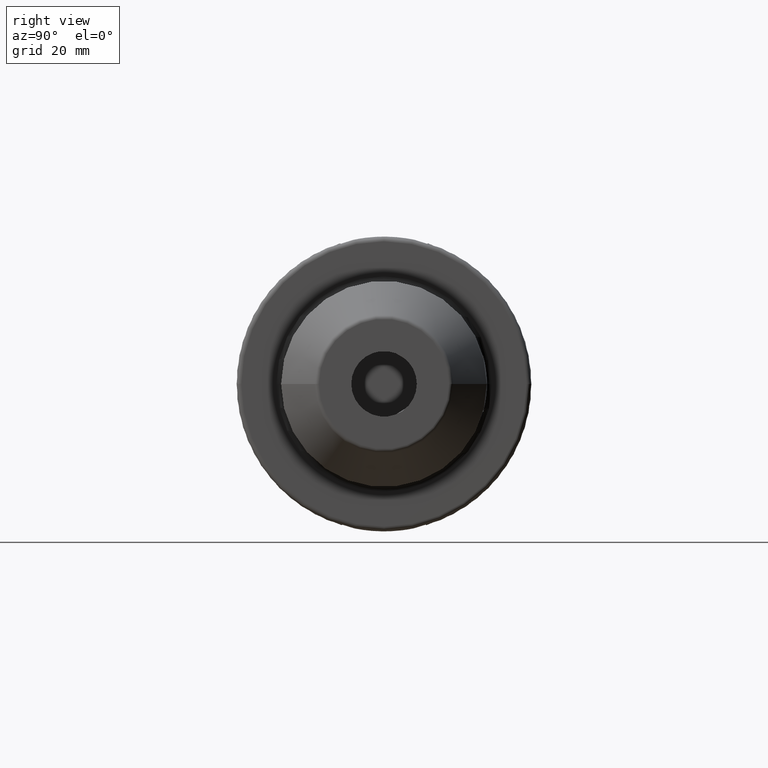
[diagram: clean part render]
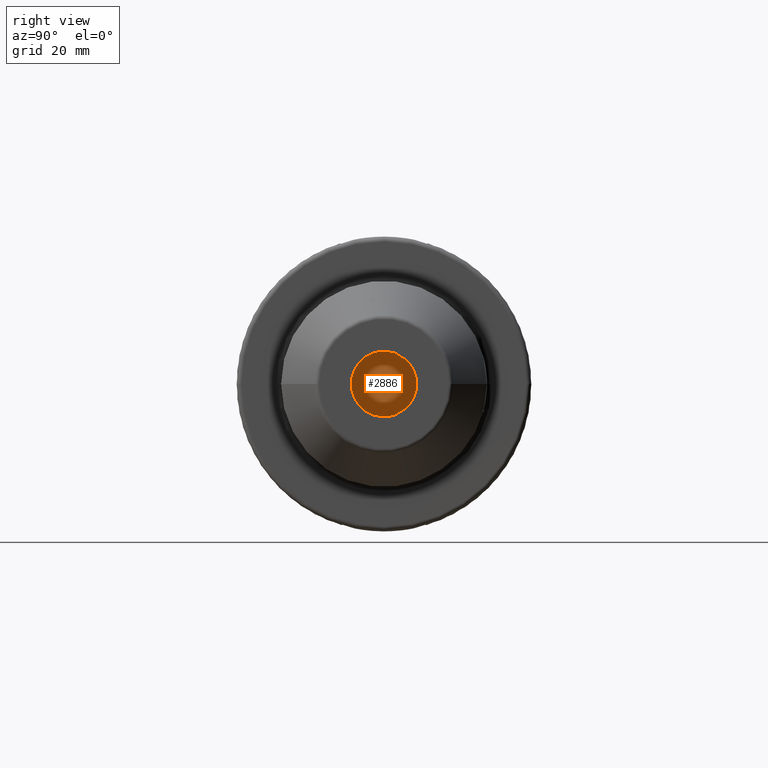
[diagram: same view with one face highlighted and labeled with its STEP entity id]
A machine part, right view. The second image highlights one B-rep face of the part: STEP entity #2886.
In plain terms, the highlighted planar face has unit normal (1, 0, 0).
Its self-contained STEP definition (entity closure, byte-faithful):
#1064=CARTESIAN_POINT('',(7.9E0,0.E0,0.E0));
#1065=DIRECTION('',(-1.E0,0.E0,0.E0));
#1066=DIRECTION('',(0.E0,1.E0,0.E0));
#1067=AXIS2_PLACEMENT_3D('',#1064,#1065,#1066);
#1069=CARTESIAN_POINT('',(7.9E0,0.E0,0.E0));
#1070=DIRECTION('',(1.E0,0.E0,0.E0));
#1071=DIRECTION('',(0.E0,1.E0,0.E0));
#1072=AXIS2_PLACEMENT_3D('',#1069,#1070,#1071);
#1517=CARTESIAN_POINT('',(7.9E0,7.E0,0.E0));
#1518=CARTESIAN_POINT('',(7.9E0,-7.E0,0.E0));
#1519=VERTEX_POINT('',#1517);
#1520=VERTEX_POINT('',#1518);
#2877=CARTESIAN_POINT('',(7.9E0,0.E0,0.E0));
#2878=DIRECTION('',(1.E0,0.E0,0.E0));
#2879=DIRECTION('',(0.E0,-1.E0,0.E0));
#2880=AXIS2_PLACEMENT_3D('',#2877,#2878,#2879);
#2881=PLANE('',#2880);
#2882=ORIENTED_EDGE('',*,*,#2801,.T.);
#2883=ORIENTED_EDGE('',*,*,#2780,.F.);
#2884=EDGE_LOOP('',(#2882,#2883));
#2885=FACE_OUTER_BOUND('',#2884,.F.);
#2886=ADVANCED_FACE('',(#2885),#2881,.T.);
#1068=CIRCLE('',#1067,7.E0);
#1073=CIRCLE('',#1072,7.E0);
#2780=EDGE_CURVE('',#1519,#1520,#1073,.T.);
#2801=EDGE_CURVE('',#1519,#1520,#1068,.T.);